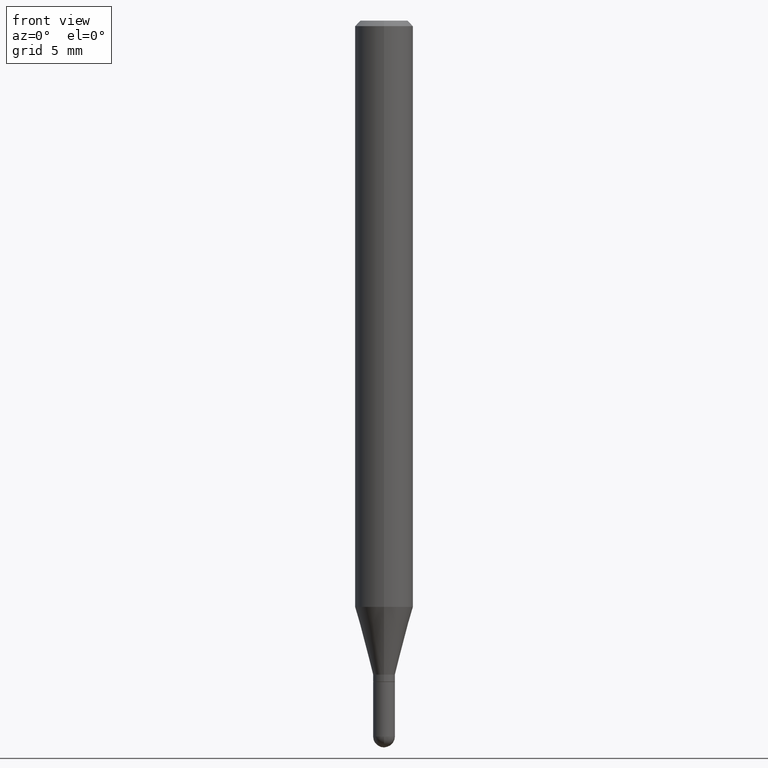
[diagram: clean part render]
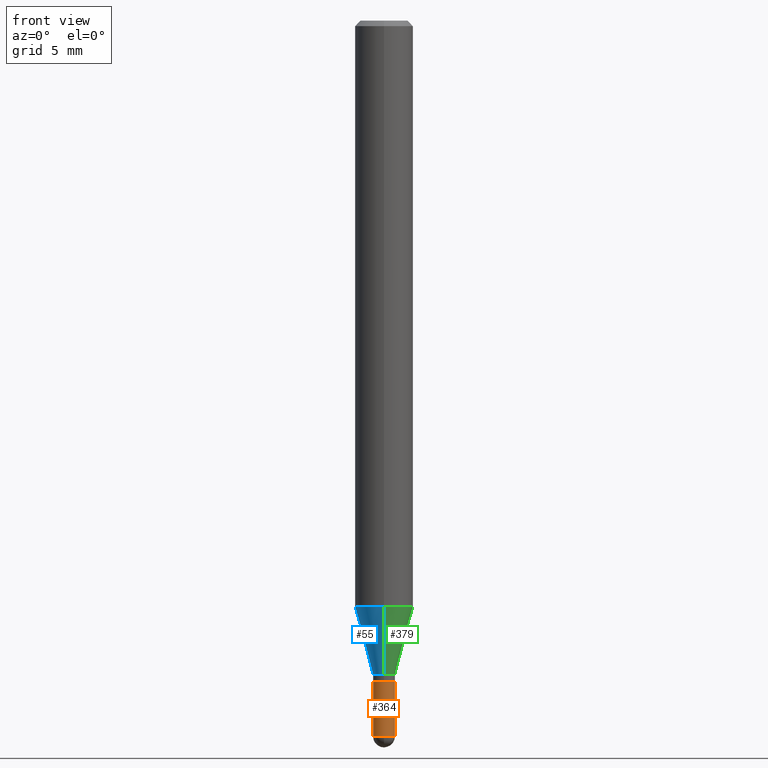
[diagram: same view with three faces highlighted in distinct colors, each labeled with its STEP entity id]
A machine part, front view with three faces highlighted in distinct colors.
Their STEP definitions:

[orange] entity #364 — the highlighted cylindrical surface (edge-blend (fillet) strip) has radius 0.7506 mm, axis along (-0, 0, 1).
#6 = DIRECTION ( 'NONE',  ( -2.445468806185136597E-29, 3.491481338843145583E-15, 1.000000000000000000 ) ) ;
#9 = FACE_OUTER_BOUND ( 'NONE', #244, .T. ) ;
#10 = AXIS2_PLACEMENT_3D ( 'NONE', #186, #64, #511 ) ;
#22 = LINE ( 'NONE', #184, #72 ) ;
#30 = AXIS2_PLACEMENT_3D ( 'NONE', #71, #6, #332 ) ;
#39 = EDGE_CURVE ( 'NONE', #239, #109, #174, .T. ) ;
#64 = DIRECTION ( 'NONE',  ( -2.445468806185136597E-29, 3.491481338843145583E-15, 1.000000000000000000 ) ) ;
#67 = CARTESIAN_POINT ( 'NONE',  ( 0.02954999999999999988, -6.718395679235450664E-15, -1.938949999999999729 ) ) ;
#71 = CARTESIAN_POINT ( 'NONE',  ( 0.000000000000000000, 0.000000000000000000, 0.000000000000000000 ) ) ;
#72 = VECTOR ( 'NONE', #346, 39.37007874015748143 ) ;
#89 = VERTEX_POINT ( 'NONE', #286 ) ;
#109 = VERTEX_POINT ( 'NONE', #288 ) ;
#128 = EDGE_CURVE ( 'NONE', #444, #239, #343, .T. ) ;
#131 = VECTOR ( 'NONE', #450, 39.37007874015748143 ) ;
#135 = CARTESIAN_POINT ( 'NONE',  ( 0.02954999999999999988, -2.063465471256291914E-16, 1.440910237247699070E-30 ) ) ;
#136 = ORIENTED_EDGE ( 'NONE', *, *, #195, .T. ) ;
#162 = CIRCLE ( 'NONE', #10, 0.02954999999999999988 ) ;
#174 = LINE ( 'NONE', #135, #131 ) ;
#182 = AXIS2_PLACEMENT_3D ( 'NONE', #306, #310, #465 ) ;
#184 = CARTESIAN_POINT ( 'NONE',  ( -0.02954999999999999988, 2.099653784171096041E-16, -1.453545319170324550E-30 ) ) ;
#186 = CARTESIAN_POINT ( 'NONE',  ( 4.741641741752670047E-29, -6.769807741949916508E-15, -1.938949999999999729 ) ) ;
#192 = CARTESIAN_POINT ( 'NONE',  ( -0.02954999999999999988, -6.302083753692712485E-15, -1.938949999999999729 ) ) ;
#195 = EDGE_CURVE ( 'NONE', #481, #444, #162, .T. ) ;
#211 = AXIS2_PLACEMENT_3D ( 'NONE', #336, #487, #374 ) ;
#239 = VERTEX_POINT ( 'NONE', #67 ) ;
#244 = EDGE_LOOP ( 'NONE', ( #467, #136, #263, #428, #408 ) ) ;
#245 = CARTESIAN_POINT ( 'NONE',  ( -2.099653784170621245E-16, -0.02955000000000676530, -1.938949999999999729 ) ) ;
#263 = ORIENTED_EDGE ( 'NONE', *, *, #128, .T. ) ;
#277 = CYLINDRICAL_SURFACE ( 'NONE', #30, 0.02954999999999999988 ) ;
#278 = EDGE_CURVE ( 'NONE', #481, #89, #22, .T. ) ;
#286 = CARTESIAN_POINT ( 'NONE',  ( -0.02954999999999999988, -6.302083753692712485E-15, -1.791300000000000114 ) ) ;
#288 = CARTESIAN_POINT ( 'NONE',  ( 0.02954999999999999988, -6.460637069395355998E-15, -1.791300000000000114 ) ) ;
#306 = CARTESIAN_POINT ( 'NONE',  ( 4.380568272519435501E-29, -6.254290522269726388E-15, -1.791300000000000114 ) ) ;
#310 = DIRECTION ( 'NONE',  ( -2.445468806185136597E-29, 3.491481338843145583E-15, 1.000000000000000000 ) ) ;
#332 = DIRECTION ( 'NONE',  ( 1.000000000000000000, -6.982962677686266711E-15, 4.876176775795935793E-29 ) ) ;
#336 = CARTESIAN_POINT ( 'NONE',  ( 4.741641741752670047E-29, -6.769807741949916508E-15, -1.938949999999999729 ) ) ;
#343 = CIRCLE ( 'NONE', #211, 0.02954999999999999988 ) ;
#346 = DIRECTION ( 'NONE',  ( -2.445468806185136877E-29, 3.491481338843145188E-15, 1.000000000000000000 ) ) ;
#362 = CIRCLE ( 'NONE', #182, 0.02954999999999999988 ) ;
#364 = ADVANCED_FACE ( 'NONE', ( #9 ), #277, .T. ) ;
#374 = DIRECTION ( 'NONE',  ( 1.000000000000000000, -6.982962677686261977E-15, 0.000000000000000000 ) ) ;
#408 = ORIENTED_EDGE ( 'NONE', *, *, #476, .F. ) ;
#428 = ORIENTED_EDGE ( 'NONE', *, *, #39, .T. ) ;
#444 = VERTEX_POINT ( 'NONE', #245 ) ;
#450 = DIRECTION ( 'NONE',  ( -2.445468806185136877E-29, 3.491481338843145188E-15, 1.000000000000000000 ) ) ;
#465 = DIRECTION ( 'NONE',  ( 1.000000000000000000, -6.982962677686261977E-15, 0.000000000000000000 ) ) ;
#467 = ORIENTED_EDGE ( 'NONE', *, *, #278, .F. ) ;
#476 = EDGE_CURVE ( 'NONE', #89, #109, #362, .T. ) ;
#481 = VERTEX_POINT ( 'NONE', #192 ) ;
#487 = DIRECTION ( 'NONE',  ( -2.445468806185136597E-29, 3.491481338843145583E-15, 1.000000000000000000 ) ) ;
#511 = DIRECTION ( 'NONE',  ( 1.000000000000000000, -6.982962677686261977E-15, 0.000000000000000000 ) ) ;

[blue] entity #55 — the highlighted conical surface has half-angle 15 deg.
#17 = DIRECTION ( 'NONE',  ( -2.445486363114738978E-29, 3.491456196320676645E-15, 1.000000000000000000 ) ) ;
#34 = EDGE_CURVE ( 'NONE', #316, #68, #443, .T. ) ;
#40 = DIRECTION ( 'NONE',  ( -1.807323732225332900E-15, -0.2588190451025185190, 0.9659258262890689783 ) ) ;
#49 = EDGE_CURVE ( 'NONE', #316, #222, #223, .T. ) ;
#55 = ADVANCED_FACE ( 'NONE', ( #352 ), #237, .T. ) ;
#68 = VERTEX_POINT ( 'NONE', #363 ) ;
#88 = CARTESIAN_POINT ( 'NONE',  ( 3.883146467924801368E-29, -5.544024289462241926E-15, -1.587883100267612813 ) ) ;
#101 = CARTESIAN_POINT ( 'NONE',  ( 4.332179092257759674E-29, -6.185114651782077794E-15, -1.771499999999999853 ) ) ;
#106 = EDGE_CURVE ( 'NONE', #222, #489, #167, .T. ) ;
#118 = AXIS2_PLACEMENT_3D ( 'NONE', #88, #17, #260 ) ;
#149 = CARTESIAN_POINT ( 'NONE',  ( 2.099653784171542487E-16, 0.02954999999999400814, -1.771499999999999853 ) ) ;
#167 = CIRCLE ( 'NONE', #118, 0.07875000000000000056 ) ;
#176 = EDGE_LOOP ( 'NONE', ( #279, #194, #226, #491 ) ) ;
#194 = ORIENTED_EDGE ( 'NONE', *, *, #34, .T. ) ;
#210 = AXIS2_PLACEMENT_3D ( 'NONE', #101, #219, #377 ) ;
#217 = AXIS2_PLACEMENT_3D ( 'NONE', #308, #370, #258 ) ;
#219 = DIRECTION ( 'NONE',  ( -2.445486363114738978E-29, 3.491456196320676645E-15, 1.000000000000000000 ) ) ;
#222 = VERTEX_POINT ( 'NONE', #315 ) ;
#223 = LINE ( 'NONE', #149, #417 ) ;
#226 = ORIENTED_EDGE ( 'NONE', *, *, #380, .T. ) ;
#237 = CONICAL_SURFACE ( 'NONE', #210, 0.02955000000000019417, 0.2617993877991506291 ) ;
#241 = LINE ( 'NONE', #397, #293 ) ;
#258 = DIRECTION ( 'NONE',  ( -6.982962677686265133E-15, -1.000000000000000000, 0.000000000000000000 ) ) ;
#260 = DIRECTION ( 'NONE',  ( -6.982962677686264344E-15, -1.000000000000000000, 3.469013325287953293E-15 ) ) ;
#267 = CARTESIAN_POINT ( 'NONE',  ( -5.499083108677547901E-16, -0.07875000000000556555, -1.587883100267612591 ) ) ;
#279 = ORIENTED_EDGE ( 'NONE', *, *, #49, .F. ) ;
#293 = VECTOR ( 'NONE', #40, 39.37007874015748854 ) ;
#308 = CARTESIAN_POINT ( 'NONE',  ( 4.332179092257759674E-29, -6.185114651782077794E-15, -1.771499999999999853 ) ) ;
#315 = CARTESIAN_POINT ( 'NONE',  ( 5.595524044111173573E-16, 0.07874999999999443556, -1.587883100267613035 ) ) ;
#316 = VERTEX_POINT ( 'NONE', #322 ) ;
#322 = CARTESIAN_POINT ( 'NONE',  ( 3.847588914141360372E-16, 0.02954999999999400814, -1.771499999999999853 ) ) ;
#352 = FACE_OUTER_BOUND ( 'NONE', #176, .T. ) ;
#358 = DIRECTION ( 'NONE',  ( 1.839019923739602682E-15, 0.2588190451025252914, 0.9659258262890670910 ) ) ;
#363 = CARTESIAN_POINT ( 'NONE',  ( -2.063465471255871845E-16, -0.02955000000000637672, -1.771499999999999853 ) ) ;
#370 = DIRECTION ( 'NONE',  ( -2.445486363114738978E-29, 3.491456196320676645E-15, 1.000000000000000000 ) ) ;
#377 = DIRECTION ( 'NONE',  ( -6.982962677686265133E-15, -1.000000000000000000, 0.000000000000000000 ) ) ;
#380 = EDGE_CURVE ( 'NONE', #68, #489, #241, .T. ) ;
#397 = CARTESIAN_POINT ( 'NONE',  ( -2.063465471255871845E-16, -0.02955000000000637672, -1.771499999999999853 ) ) ;
#417 = VECTOR ( 'NONE', #358, 39.37007874015748143 ) ;
#443 = CIRCLE ( 'NONE', #217, 0.02955000000000019417 ) ;
#489 = VERTEX_POINT ( 'NONE', #267 ) ;
#491 = ORIENTED_EDGE ( 'NONE', *, *, #106, .F. ) ;

[green] entity #379 — the highlighted conical surface has half-angle 15 deg.
#4 = AXIS2_PLACEMENT_3D ( 'NONE', #455, #98, #254 ) ;
#18 = ORIENTED_EDGE ( 'NONE', *, *, #146, .F. ) ;
#40 = DIRECTION ( 'NONE',  ( -1.807323732225332900E-15, -0.2588190451025185190, 0.9659258262890689783 ) ) ;
#43 = ORIENTED_EDGE ( 'NONE', *, *, #380, .F. ) ;
#49 = EDGE_CURVE ( 'NONE', #316, #222, #223, .T. ) ;
#68 = VERTEX_POINT ( 'NONE', #363 ) ;
#77 = FACE_OUTER_BOUND ( 'NONE', #312, .T. ) ;
#82 = CARTESIAN_POINT ( 'NONE',  ( 4.332179092257759674E-29, -6.185114651782077794E-15, -1.771499999999999853 ) ) ;
#94 = ORIENTED_EDGE ( 'NONE', *, *, #49, .T. ) ;
#98 = DIRECTION ( 'NONE',  ( -2.445486363114738978E-29, 3.491456196320676645E-15, 1.000000000000000000 ) ) ;
#103 = EDGE_CURVE ( 'NONE', #68, #316, #291, .T. ) ;
#123 = AXIS2_PLACEMENT_3D ( 'NONE', #82, #432, #478 ) ;
#133 = ORIENTED_EDGE ( 'NONE', *, *, #103, .T. ) ;
#146 = EDGE_CURVE ( 'NONE', #489, #222, #418, .T. ) ;
#149 = CARTESIAN_POINT ( 'NONE',  ( 2.099653784171542487E-16, 0.02954999999999400814, -1.771499999999999853 ) ) ;
#222 = VERTEX_POINT ( 'NONE', #315 ) ;
#223 = LINE ( 'NONE', #149, #417 ) ;
#241 = LINE ( 'NONE', #397, #293 ) ;
#254 = DIRECTION ( 'NONE',  ( -6.982962677686265133E-15, -1.000000000000000000, 0.000000000000000000 ) ) ;
#267 = CARTESIAN_POINT ( 'NONE',  ( -5.499083108677547901E-16, -0.07875000000000556555, -1.587883100267612591 ) ) ;
#291 = CIRCLE ( 'NONE', #4, 0.02955000000000019417 ) ;
#293 = VECTOR ( 'NONE', #40, 39.37007874015748854 ) ;
#295 = CARTESIAN_POINT ( 'NONE',  ( 3.883146467924801368E-29, -5.544024289462241926E-15, -1.587883100267612813 ) ) ;
#299 = DIRECTION ( 'NONE',  ( -6.982962677686264344E-15, -1.000000000000000000, 3.469013325287953293E-15 ) ) ;
#305 = AXIS2_PLACEMENT_3D ( 'NONE', #295, #412, #299 ) ;
#312 = EDGE_LOOP ( 'NONE', ( #133, #94, #18, #43 ) ) ;
#315 = CARTESIAN_POINT ( 'NONE',  ( 5.595524044111173573E-16, 0.07874999999999443556, -1.587883100267613035 ) ) ;
#316 = VERTEX_POINT ( 'NONE', #322 ) ;
#322 = CARTESIAN_POINT ( 'NONE',  ( 3.847588914141360372E-16, 0.02954999999999400814, -1.771499999999999853 ) ) ;
#358 = DIRECTION ( 'NONE',  ( 1.839019923739602682E-15, 0.2588190451025252914, 0.9659258262890670910 ) ) ;
#363 = CARTESIAN_POINT ( 'NONE',  ( -2.063465471255871845E-16, -0.02955000000000637672, -1.771499999999999853 ) ) ;
#379 = ADVANCED_FACE ( 'NONE', ( #77 ), #474, .T. ) ;
#380 = EDGE_CURVE ( 'NONE', #68, #489, #241, .T. ) ;
#397 = CARTESIAN_POINT ( 'NONE',  ( -2.063465471255871845E-16, -0.02955000000000637672, -1.771499999999999853 ) ) ;
#412 = DIRECTION ( 'NONE',  ( -2.445486363114738978E-29, 3.491456196320676645E-15, 1.000000000000000000 ) ) ;
#417 = VECTOR ( 'NONE', #358, 39.37007874015748143 ) ;
#418 = CIRCLE ( 'NONE', #305, 0.07875000000000000056 ) ;
#432 = DIRECTION ( 'NONE',  ( -2.445486363114738978E-29, 3.491456196320676645E-15, 1.000000000000000000 ) ) ;
#455 = CARTESIAN_POINT ( 'NONE',  ( 4.332179092257759674E-29, -6.185114651782077794E-15, -1.771499999999999853 ) ) ;
#474 = CONICAL_SURFACE ( 'NONE', #123, 0.02955000000000019417, 0.2617993877991506291 ) ;
#478 = DIRECTION ( 'NONE',  ( -6.982962677686265133E-15, -1.000000000000000000, 0.000000000000000000 ) ) ;
#489 = VERTEX_POINT ( 'NONE', #267 ) ;